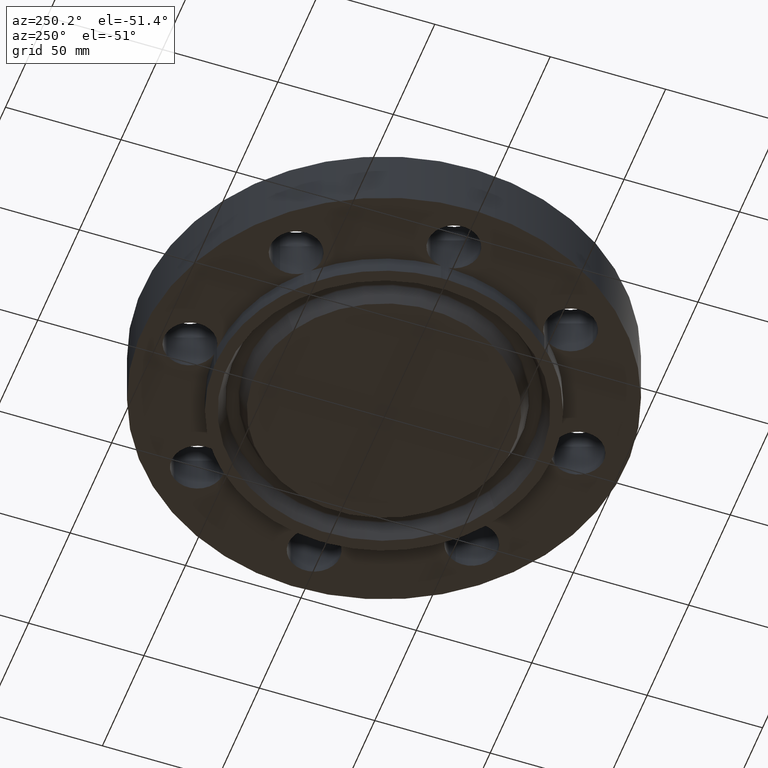
[diagram: clean part render]
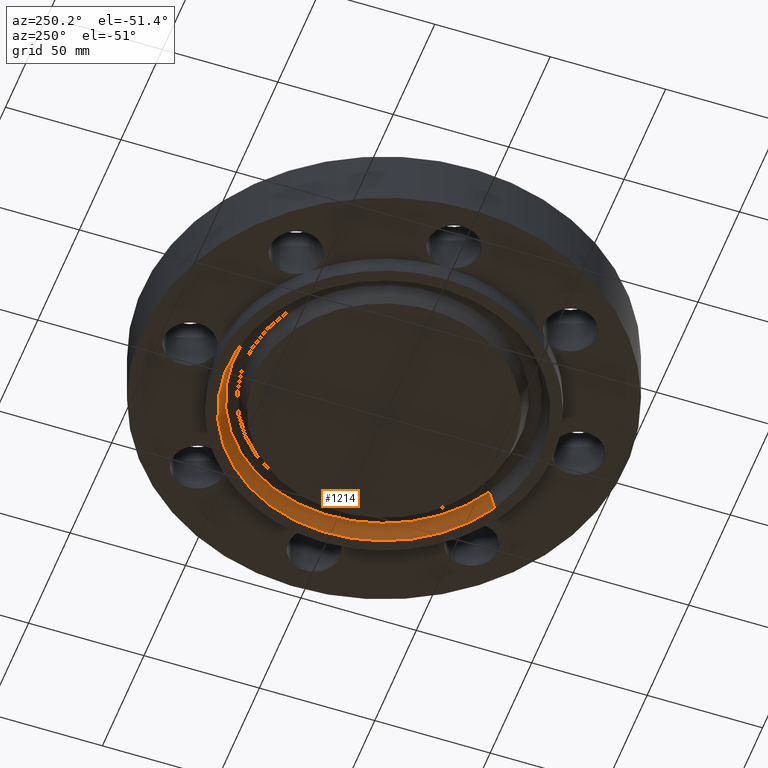
[diagram: same view with one face highlighted and labeled with its STEP entity id]
A machine part, auxiliary view. The second image highlights one B-rep face of the part: STEP entity #1214.
In plain terms, the highlighted conical surface has half-angle 23 deg.
Its self-contained STEP definition (entity closure, byte-faithful):
#216=AXIS2_PLACEMENT_3D('Circle Axis2P3D',#214,#215,$) ;
#1149=AXIS2_PLACEMENT_3D('Cone Axis2P3D',#1146,#1147,#1148) ;
#1170=AXIS2_PLACEMENT_3D('Circle Axis2P3D',#1168,#1169,$) ;
#209=CARTESIAN_POINT('Vertex',(1.2809770966,-2.34481284712,-0.312500000001)) ;
#211=CARTESIAN_POINT('Vertex',(-1.2809770966,2.34481284712,-0.312500000001)) ;
#214=CARTESIAN_POINT('Axis2P3D Location',(-2.79741234551E-016,-2.79741234551E-016,-0.312500000001)) ;
#1115=CARTESIAN_POINT('Vertex',(-1.22126292165,2.23550678306,-0.0190701156784)) ;
#1117=CARTESIAN_POINT('Vertex',(1.22126292165,-2.23550678306,-0.0190701156784)) ;
#1146=CARTESIAN_POINT('Axis2P3D Location',(0.,0.,-0.0190701156784)) ;
#1151=CARTESIAN_POINT('Line Origine',(-1.25112000913,2.29015981509,-0.16578505784)) ;
#1156=CARTESIAN_POINT('Line Origine',(1.25112000913,-2.29015981509,-0.16578505784)) ;
#1168=CARTESIAN_POINT('Axis2P3D Location',(0.,0.,-0.0190701156784)) ;
#215=DIRECTION('Axis2P3D Direction',(0.,0.,-0.0393700787402)) ;
#1147=DIRECTION('Axis2P3D Direction',(-0.,-0.,-0.0393700787402)) ;
#1148=DIRECTION('Axis2P3D XDirection',(-0.0188750212049,0.0345504945626,0.)) ;
#1152=DIRECTION('Vector Direction',(-0.00737505833565,0.0134999537303,-0.0362403485611)) ;
#1157=DIRECTION('Vector Direction',(0.00737505833565,-0.0134999537303,-0.0362403485611)) ;
#1169=DIRECTION('Axis2P3D Direction',(0.,0.,0.0393700787402)) ;
#1153=VECTOR('Line Direction',#1152,0.0393700787402) ;
#1158=VECTOR('Line Direction',#1157,0.0393700787402) ;
#1209=ORIENTED_EDGE('',*,*,#218,.T.) ;
#1210=ORIENTED_EDGE('',*,*,#1160,.T.) ;
#1211=ORIENTED_EDGE('',*,*,#1172,.T.) ;
#1212=ORIENTED_EDGE('',*,*,#1155,.F.) ;
#1214=ADVANCED_FACE('PartBody',(#1213),#1150,.F.) ;
#217=CIRCLE('generated circle',#216,2.67190000001) ;
#1171=CIRCLE('generated circle',#1170,2.54734640379) ;
#1150=CONICAL_SURFACE('Cone',#1149,2.54734640379,0.401425727959) ;
#218=EDGE_CURVE('',#212,#210,#217,.T.) ;
#1155=EDGE_CURVE('',#212,#1116,#1154,.F.) ;
#1160=EDGE_CURVE('',#210,#1118,#1159,.F.) ;
#1172=EDGE_CURVE('',#1118,#1116,#1171,.T.) ;
#1208=EDGE_LOOP('',(#1209,#1210,#1211,#1212)) ;
#1213=FACE_OUTER_BOUND('',#1208,.T.) ;
#1154=LINE('Line',#1151,#1153) ;
#1159=LINE('Line',#1156,#1158) ;
#210=VERTEX_POINT('',#209) ;
#212=VERTEX_POINT('',#211) ;
#1116=VERTEX_POINT('',#1115) ;
#1118=VERTEX_POINT('',#1117) ;